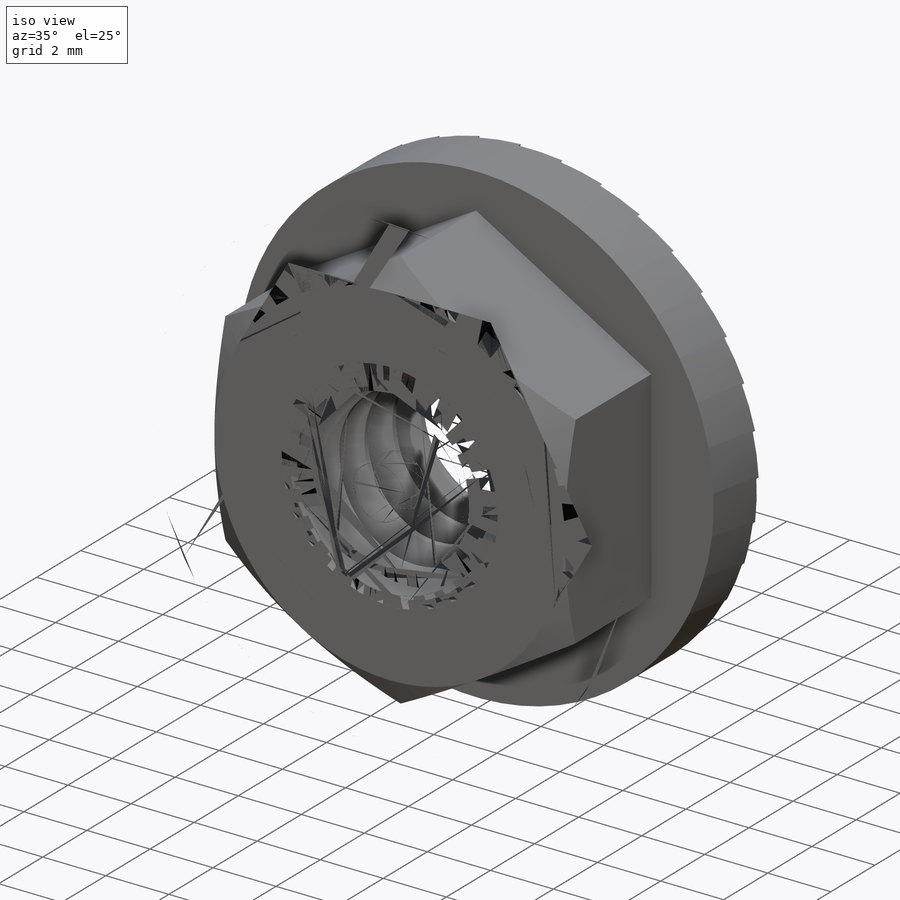
[diagram: iso view]
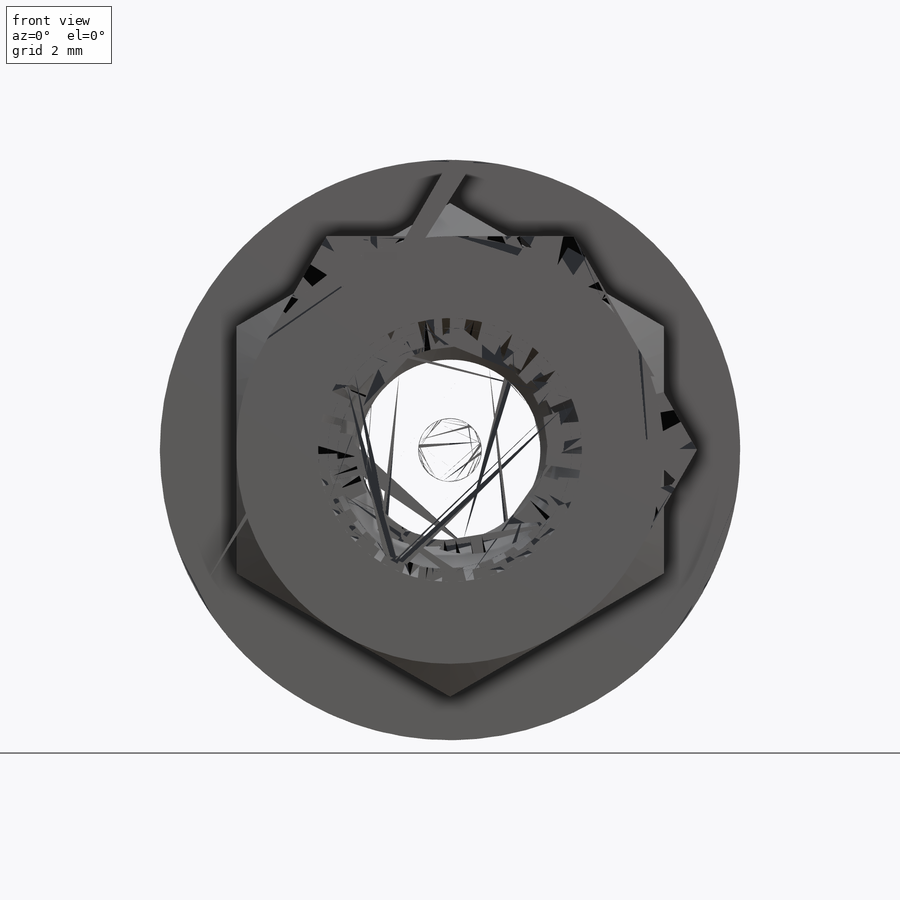
[diagram: front view]
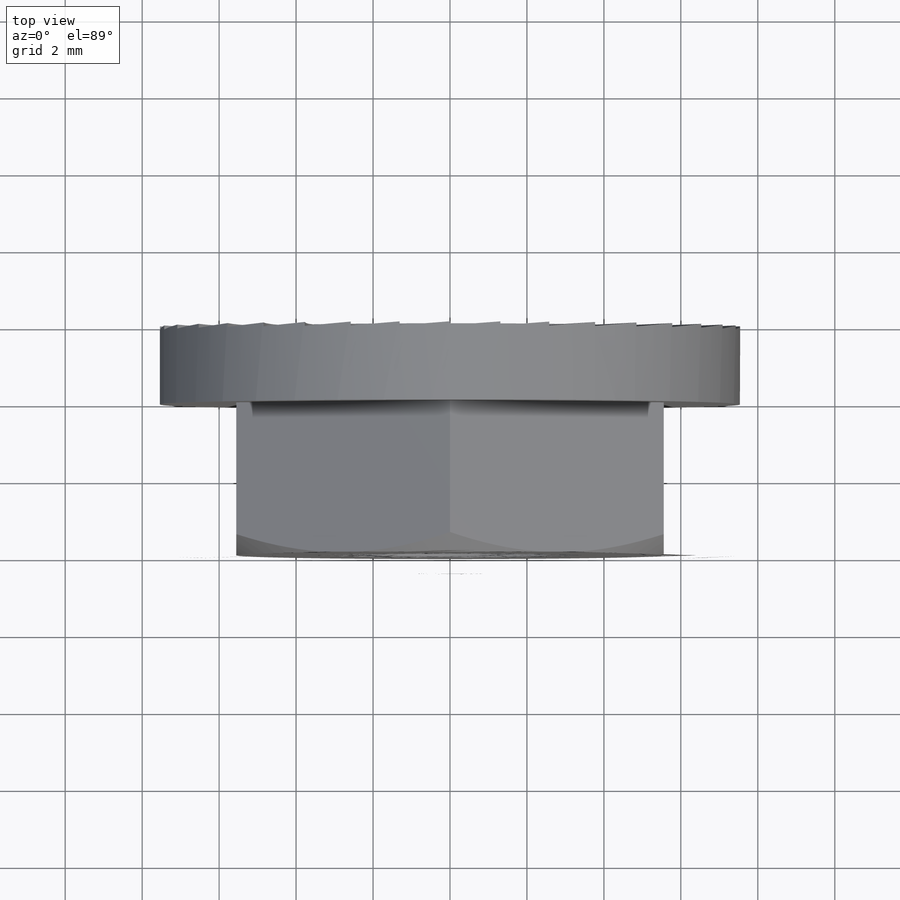
[diagram: top view]
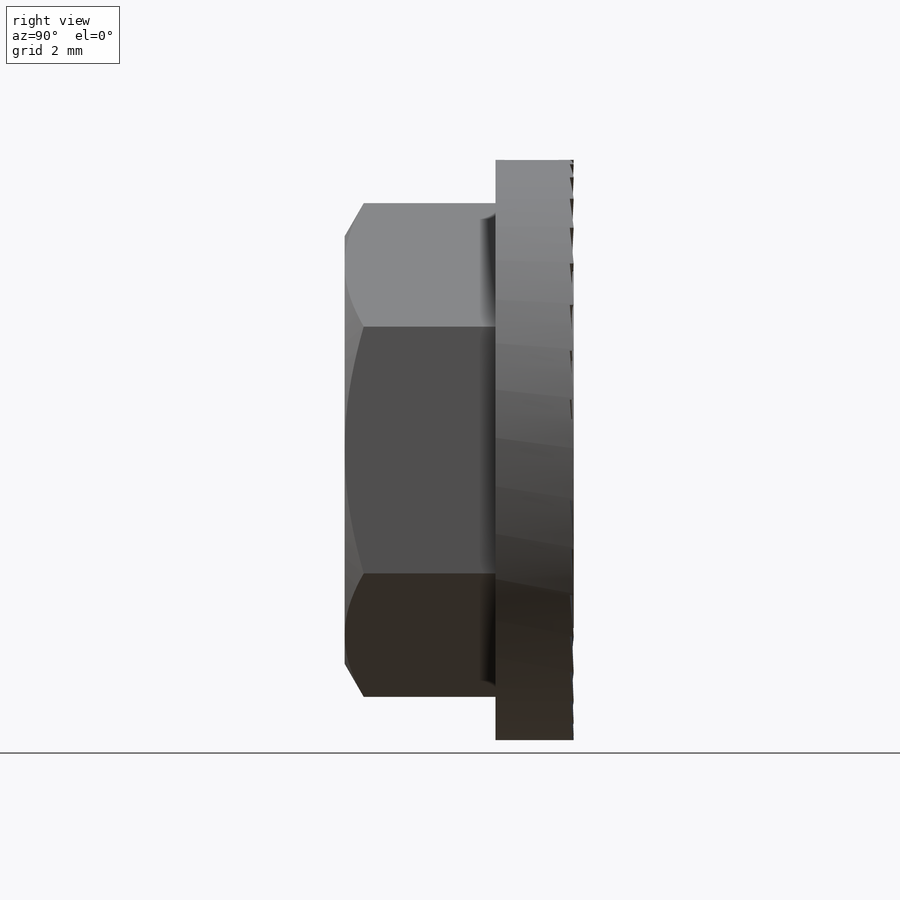
[diagram: right view]
SOLIDWORKS PART (.sldprt)
format: sldprt  version: not decoded by parser v0  size: 891,904 bytes
history: native  units: mm
features: sketch x15, cut_extrude x7, extrude x4, material x1, helix x1, sweep x1, pattern_circular x1, boolean_combine x1 (+13 scaffold rows collapsed)
feature tree (44):
  scaffold x13  (default folders/planes/origin — collapsed)
  material  "Cast Alloy Steel"
  sketch  "Sketch1"  dims[Hex=11.1125mm]
  extrude  "Extrude1"  Depth=5.953125mm Height=5.953125mm
  sketch  "Sketch13"  dims[Flange od=~15.08125mm]
  extrude  "Extrude3"  Depth=2.032mm flange thickness=2.032mm
  sketch  "Sketch2"
  cut_extrude  "Cut-Extrude1"  [1 undecoded]
  sketch  "Sketch4"  dims[Thread Dia=6.35mm]
  cut_extrude  "Cut-Extrude3"  [1 undecoded]
  sketch  "Sketch7"  dims[D1=0.254mm]
  sketch  "Sketch8"
  sketch  "Sketch5"
  helix  "Helix/Spiral1"  Pitch=7.223125mm pitch=1.27mm
  sketch  "Sketch9"  dims[c1.D1=~2.869972mm c2.D1=60.0deg c2.D2=~0.198437mm c2.D3=1.5875mm c2.D4=4.7625mm c3.D1=~0.15875mm c3.D2=0.635mm c3.D3=~4.457664mm c4.D3=0.0625deg c5.D3=~4.457664mm c6.D3=60.0deg]
  sketch  "Sketch12"
  extrude  "Extrude2"  [1 undecoded]
  sweep  "Cut-Sweep1"
  cut_extrude  "Cut-Extrude6"  [1 undecoded]
  cut_extrude  "Cut-Extrude7"  [1 undecoded]
  sketch  "Sketch14"  dims[c1.D2=14.097mm c1.D1=6.35mm c2.D2=0.508mm c2.D3=~15.473101mm c3.D3=10.0deg c3.D2=~4.365625mm c4.D3=~2.910417mm c4.D1=2.032mm]
  cut_extrude  "Cut-Extrude8"  Depth=0.2032mm
  sketch  "Sketch15"  dims[c1.D1=~5.52193mm c2.D1=20.0deg]
  extrude  "Extrude4"  [1 undecoded]
  sketch  "Sketch16"  dims[D1=0.0mm]
  cut_extrude  "Cut-Extrude9"  [1 undecoded]
  sketch  "Sketch19"  dims[c1.D1=~0.751589mm c1.D2=~0.326387mm c2.D1=~1.608054mm c2.D2=~0.402014mm c2.D3=~0.201007mm c3.D1=0.254mm]
  cut_extrude  "Extrude5"  [1 undecoded]
  pattern_circular  "CirPattern1"  Count=36 Angle=360deg
  boolean_combine  "Combine1"
  sketch  "Sketch17"  dims[D1=2.032mm]
  sketch  "Sketch18"
decode coverage: 15 of 30 modeling features carry decoded parameters
note: ~ marks probable driven/reference dimensions
note: 8 parameter values undecoded
summary: no parameter record found for 8 features
note: suppression state not decoded; provenance and decode notes live in map.json
